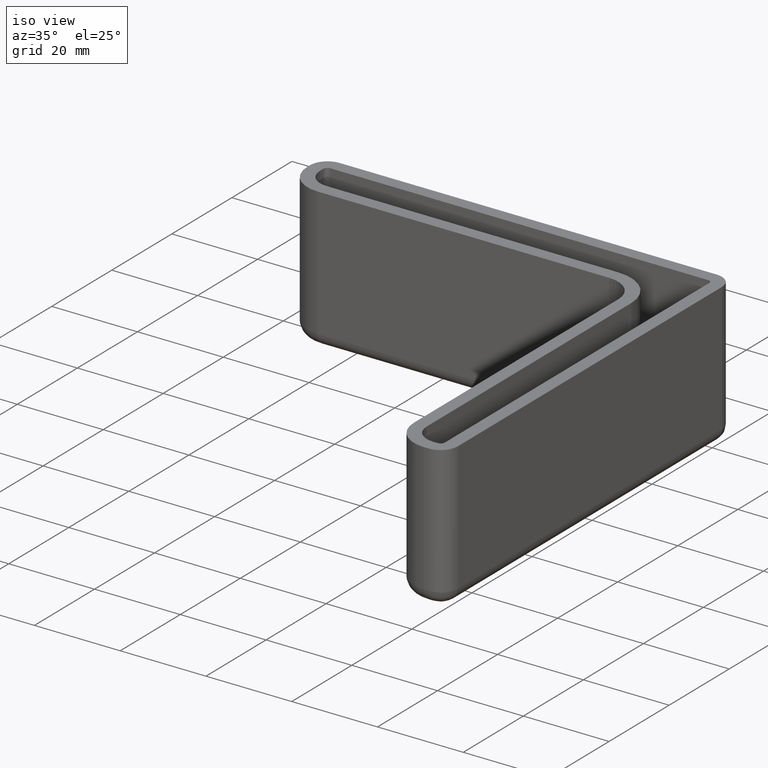
[diagram: clean part render]
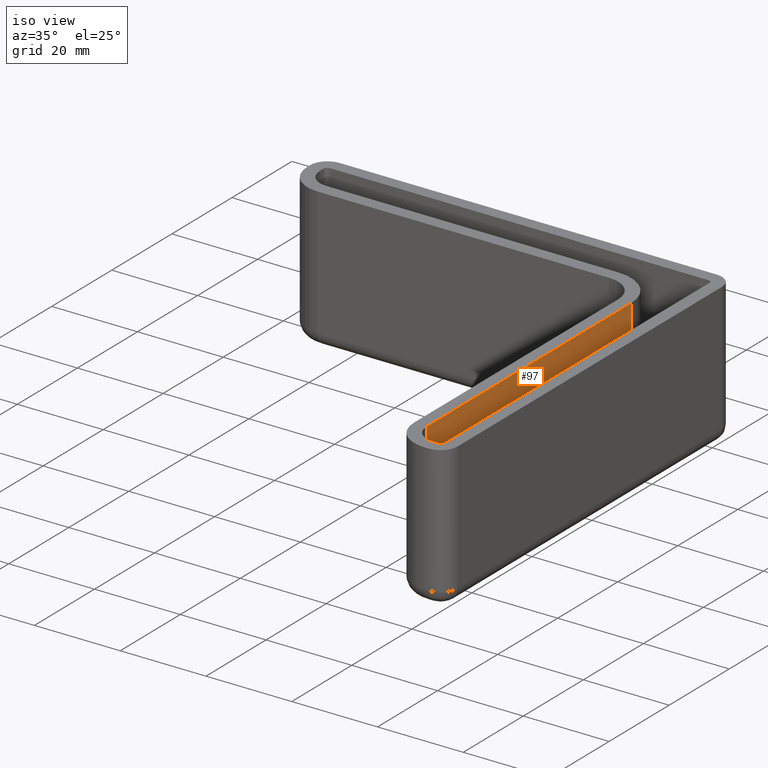
[diagram: same view with one face highlighted and labeled with its STEP entity id]
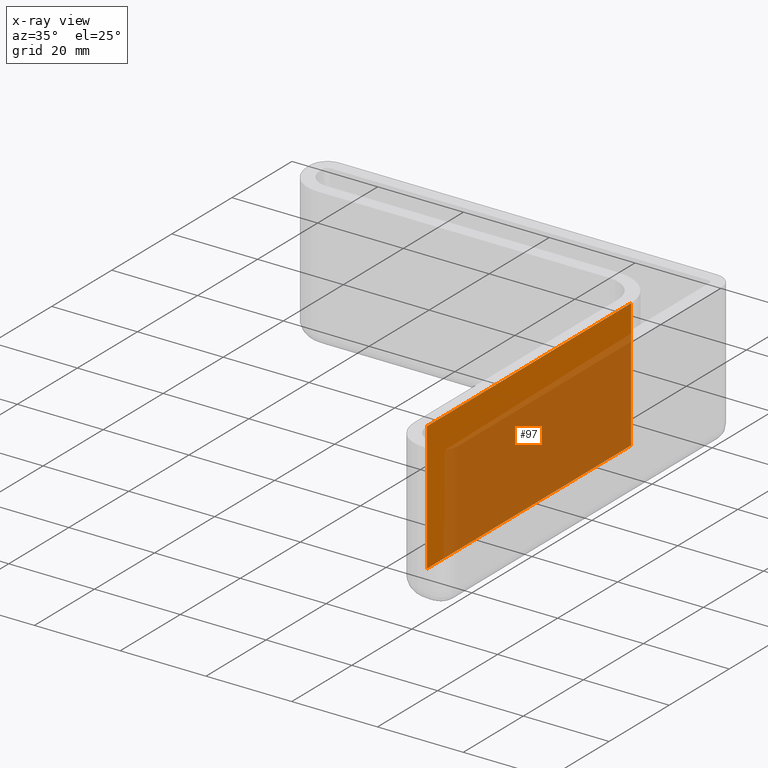
[diagram: x-ray of the same camera — body ghosted, the highlighted face saturated]
A machine part, iso view. The second image highlights one B-rep face of the part: STEP entity #97.
The next image is the same camera in x-ray: the body ghosted, the highlighted face saturated — about 71% of this face is hidden behind the body in this view.
In plain terms, the highlighted planar face has unit normal (-1, -0, 0).
Its self-contained STEP definition (entity closure, byte-faithful):
#97 = ADVANCED_FACE( '', ( #160 ), #161, .F. );
#160 = FACE_OUTER_BOUND( '', #284, .T. );
#161 = PLANE( '', #285 );
#284 = EDGE_LOOP( '', ( #499, #500, #501, #502 ) );
#285 = AXIS2_PLACEMENT_3D( '', #503, #504, #505 );
#499 = ORIENTED_EDGE( '', *, *, #700, .F. );
#500 = ORIENTED_EDGE( '', *, *, #638, .T. );
#501 = ORIENTED_EDGE( '', *, *, #702, .F. );
#502 = ORIENTED_EDGE( '', *, *, #675, .F. );
#503 = CARTESIAN_POINT( '', ( -7.00000000000002, -6.99999999999999, -30.0000000000000 ) );
#504 = DIRECTION( '', ( -1.00000000000000, -3.58732406867153E-049, 3.58678896750442E-017 ) );
#505 = DIRECTION( '', ( -3.10589904968477E-033, -1.00000000000000, -8.65927457071936E-017 ) );
#638 = EDGE_CURVE( '', #754, #752, #755, .T. );
#675 = EDGE_CURVE( '', #819, #804, #821, .T. );
#700 = EDGE_CURVE( '', #754, #819, #856, .T. );
#702 = EDGE_CURVE( '', #804, #752, #858, .T. );
#752 = VERTEX_POINT( '', #919 );
#754 = VERTEX_POINT( '', #921 );
#755 = LINE( '', #922, #923 );
#804 = VERTEX_POINT( '', #987 );
#819 = VERTEX_POINT( '', #1006 );
#821 = LINE( '', #1008, #1009 );
#856 = LINE( '', #1052, #1053 );
#858 = LINE( '', #1056, #1057 );
#919 = CARTESIAN_POINT( '', ( -7.00000000000002, -17.0000000000000, -30.0000000000000 ) );
#921 = CARTESIAN_POINT( '', ( -7.00000000000001, -85.0000000000000, -30.0000000000000 ) );
#922 = CARTESIAN_POINT( '', ( -7.00000000000003, -90.0000000000000, -30.0000000000000 ) );
#923 = VECTOR( '', #1118, 1000.00000000000 );
#987 = CARTESIAN_POINT( '', ( -7.00000000000001, -17.0000000000000, -2.79230855282591E-015 ) );
#1006 = CARTESIAN_POINT( '', ( -7.00000000000002, -85.0000000000000, -8.68061526091507E-015 ) );
#1008 = CARTESIAN_POINT( '', ( -7.00000000000002, -26.0000000000000, -3.57164326419065E-015 ) );
#1009 = VECTOR( '', #1189, 1000.00000000000 );
#1052 = CARTESIAN_POINT( '', ( -7.00000000000001, -85.0000000000000, -30.0000000000000 ) );
#1053 = VECTOR( '', #1246, 1000.00000000000 );
#1056 = CARTESIAN_POINT( '', ( -7.00000000000002, -17.0000000000000, -30.0000000000000 ) );
#1057 = VECTOR( '', #1248, 1000.00000000000 );
#1118 = DIRECTION( '', ( 0.000000000000000, 1.00000000000000, 8.65927457071936E-017 ) );
#1189 = DIRECTION( '', ( 0.000000000000000, 1.00000000000000, 8.65927457071936E-017 ) );
#1246 = DIRECTION( '', ( 3.58678896750442E-017, -8.65927457071936E-017, 1.00000000000000 ) );
#1248 = DIRECTION( '', ( -3.58678896750442E-017, 8.65927457071936E-017, -1.00000000000000 ) );